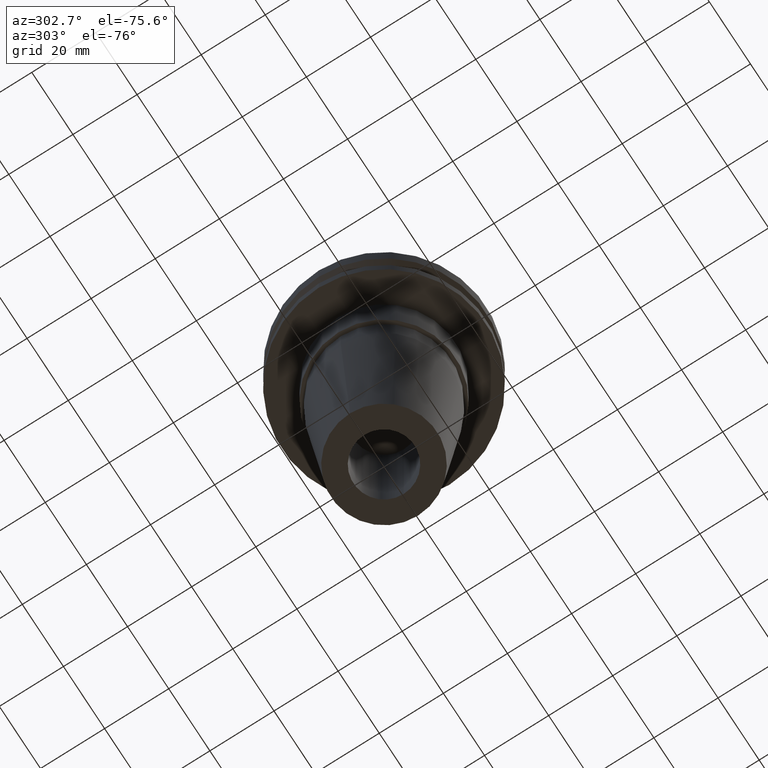
[diagram: clean part render]
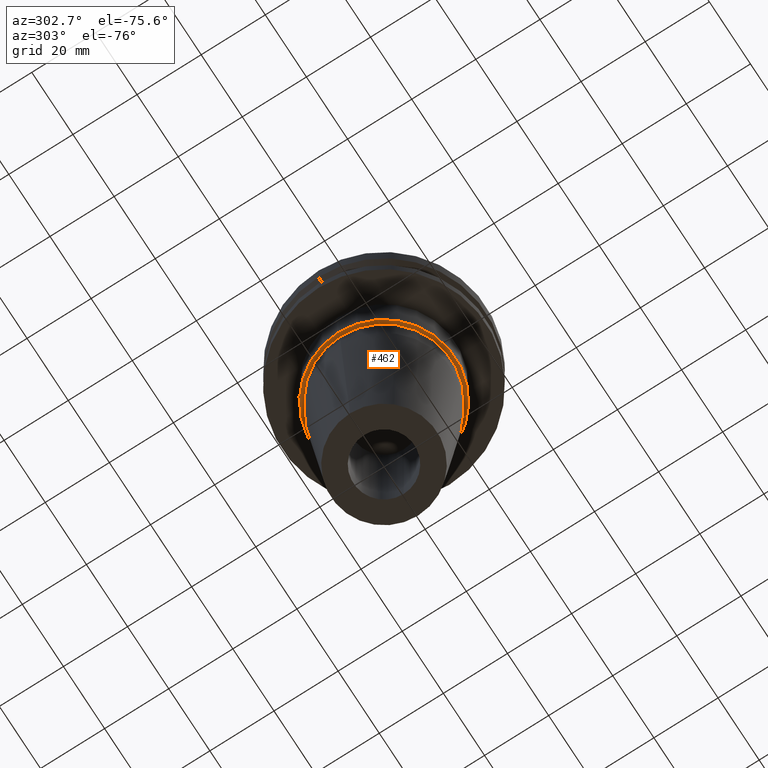
[diagram: same view with one face highlighted and labeled with its STEP entity id]
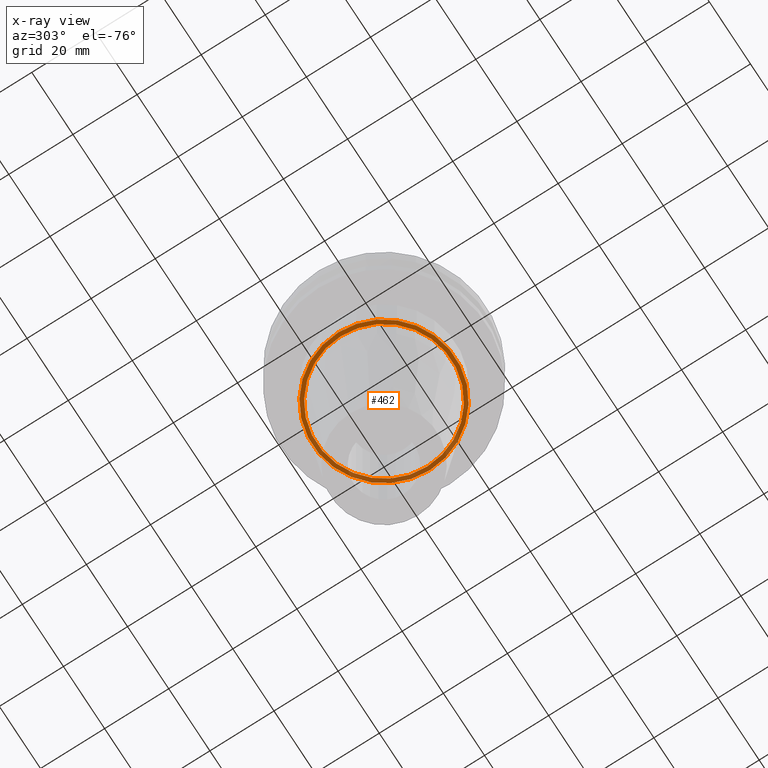
[diagram: x-ray of the same camera — body ghosted, the highlighted face saturated]
A machine part, auxiliary view. The second image highlights one B-rep face of the part: STEP entity #462.
The next image is the same camera in x-ray: the body ghosted, the highlighted face saturated — about 37% of this face is hidden behind the body in this view.
In plain terms, the highlighted planar face has unit normal (0, -0, 1).
Its self-contained STEP definition (entity closure, byte-faithful):
#21 = CARTESIAN_POINT ( 'NONE',  ( -22.22499999999999787, 2.721777511104992454E-15, -35.04999999999999716 ) ) ;
#31 = CARTESIAN_POINT ( 'NONE',  ( 21.00000000000000000, 0.000000000000000000, -35.04999999999999716 ) ) ;
#33 = EDGE_CURVE ( 'NONE', #718, #428, #575, .T. ) ;
#72 = AXIS2_PLACEMENT_3D ( 'NONE', #136, #717, #401 ) ;
#73 = CARTESIAN_POINT ( 'NONE',  ( 0.000000000000000000, 0.000000000000000000, -35.04999999999999716 ) ) ;
#103 = DIRECTION ( 'NONE',  ( -0.000000000000000000, -0.000000000000000000, 1.000000000000000000 ) ) ;
#121 = EDGE_LOOP ( 'NONE', ( #483, #821 ) ) ;
#136 = CARTESIAN_POINT ( 'NONE',  ( 0.000000000000000000, 0.000000000000000000, -35.04999999999999716 ) ) ;
#141 = DIRECTION ( 'NONE',  ( -0.000000000000000000, -0.000000000000000000, 1.000000000000000000 ) ) ;
#184 = CIRCLE ( 'NONE', #72, 22.22499999999999787 ) ;
#241 = FACE_OUTER_BOUND ( 'NONE', #590, .T. ) ;
#292 = VERTEX_POINT ( 'NONE', #21 ) ;
#297 = CARTESIAN_POINT ( 'NONE',  ( 0.000000000000000000, 0.000000000000000000, -35.04999999999999716 ) ) ;
#307 = EDGE_CURVE ( 'NONE', #292, #509, #686, .T. ) ;
#312 = ORIENTED_EDGE ( 'NONE', *, *, #771, .F. ) ;
#374 = CARTESIAN_POINT ( 'NONE',  ( 0.000000000000000000, 0.000000000000000000, -35.04999999999999716 ) ) ;
#376 = FACE_BOUND ( 'NONE', #121, .T. ) ;
#401 = DIRECTION ( 'NONE',  ( 1.000000000000000000, 0.000000000000000000, 0.000000000000000000 ) ) ;
#405 = CARTESIAN_POINT ( 'NONE',  ( -21.00000000000000000, 2.571758278209441661E-15, -35.04999999999999716 ) ) ;
#416 = AXIS2_PLACEMENT_3D ( 'NONE', #297, #103, #559 ) ;
#428 = VERTEX_POINT ( 'NONE', #31 ) ;
#440 = DIRECTION ( 'NONE',  ( 1.000000000000000000, 0.000000000000000000, 0.000000000000000000 ) ) ;
#442 = AXIS2_PLACEMENT_3D ( 'NONE', #73, #141, #459 ) ;
#459 = DIRECTION ( 'NONE',  ( 1.000000000000000000, 0.000000000000000000, 0.000000000000000000 ) ) ;
#462 = ADVANCED_FACE ( 'NONE', ( #376, #241 ), #698, .F. ) ;
#483 = ORIENTED_EDGE ( 'NONE', *, *, #759, .T. ) ;
#509 = VERTEX_POINT ( 'NONE', #567 ) ;
#511 = DIRECTION ( 'NONE',  ( -0.000000000000000000, -0.000000000000000000, 1.000000000000000000 ) ) ;
#559 = DIRECTION ( 'NONE',  ( 1.000000000000000000, 0.000000000000000000, 0.000000000000000000 ) ) ;
#562 = CARTESIAN_POINT ( 'NONE',  ( 0.000000000000000000, 22.22499999999999787, -35.04999999999999716 ) ) ;
#567 = CARTESIAN_POINT ( 'NONE',  ( 22.22499999999999787, 0.000000000000000000, -35.04999999999999716 ) ) ;
#575 = CIRCLE ( 'NONE', #743, 21.00000000000000000 ) ;
#582 = ORIENTED_EDGE ( 'NONE', *, *, #307, .F. ) ;
#590 = EDGE_LOOP ( 'NONE', ( #312, #582 ) ) ;
#611 = AXIS2_PLACEMENT_3D ( 'NONE', #562, #639, #757 ) ;
#623 = CIRCLE ( 'NONE', #442, 21.00000000000000000 ) ;
#639 = DIRECTION ( 'NONE',  ( 0.000000000000000000, -0.000000000000000000, 1.000000000000000000 ) ) ;
#686 = CIRCLE ( 'NONE', #416, 22.22499999999999787 ) ;
#698 = PLANE ( 'NONE',  #611 ) ;
#717 = DIRECTION ( 'NONE',  ( -0.000000000000000000, -0.000000000000000000, 1.000000000000000000 ) ) ;
#718 = VERTEX_POINT ( 'NONE', #405 ) ;
#743 = AXIS2_PLACEMENT_3D ( 'NONE', #374, #511, #440 ) ;
#757 = DIRECTION ( 'NONE',  ( 1.000000000000000000, 0.000000000000000000, 0.000000000000000000 ) ) ;
#759 = EDGE_CURVE ( 'NONE', #428, #718, #623, .T. ) ;
#771 = EDGE_CURVE ( 'NONE', #509, #292, #184, .T. ) ;
#821 = ORIENTED_EDGE ( 'NONE', *, *, #33, .T. ) ;